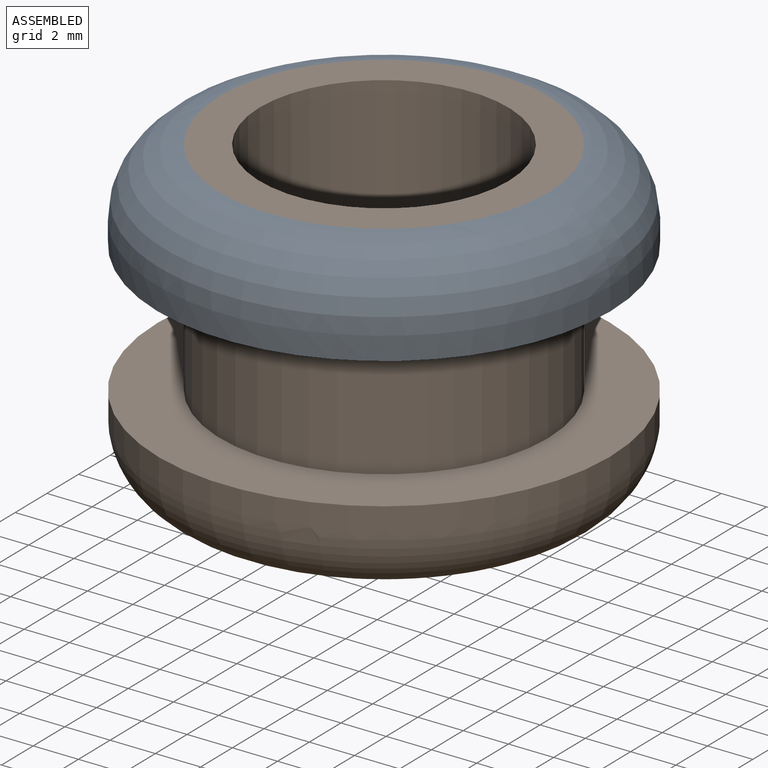
[diagram: assembled view]
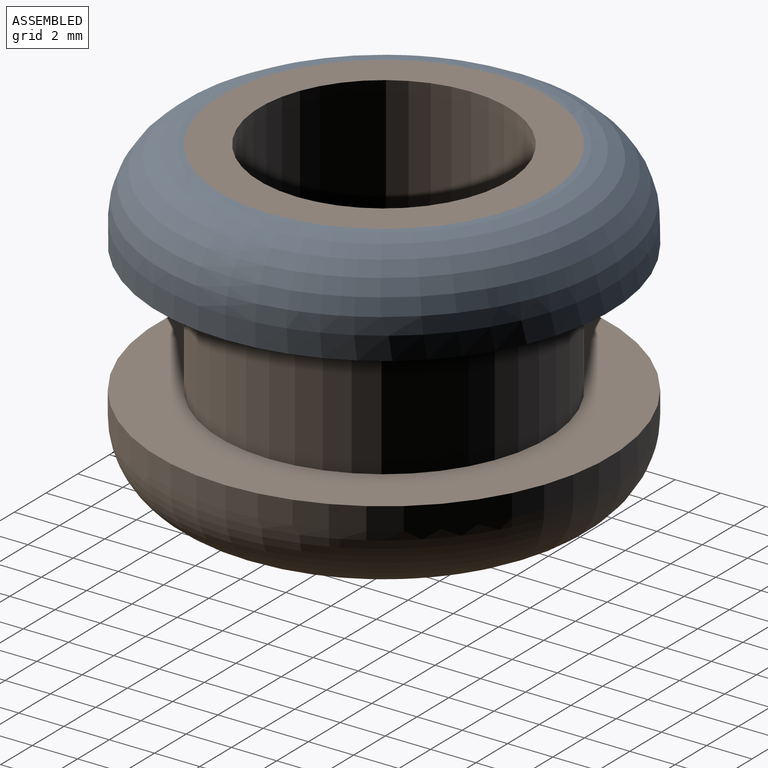
[diagram: assembled view, second angle]
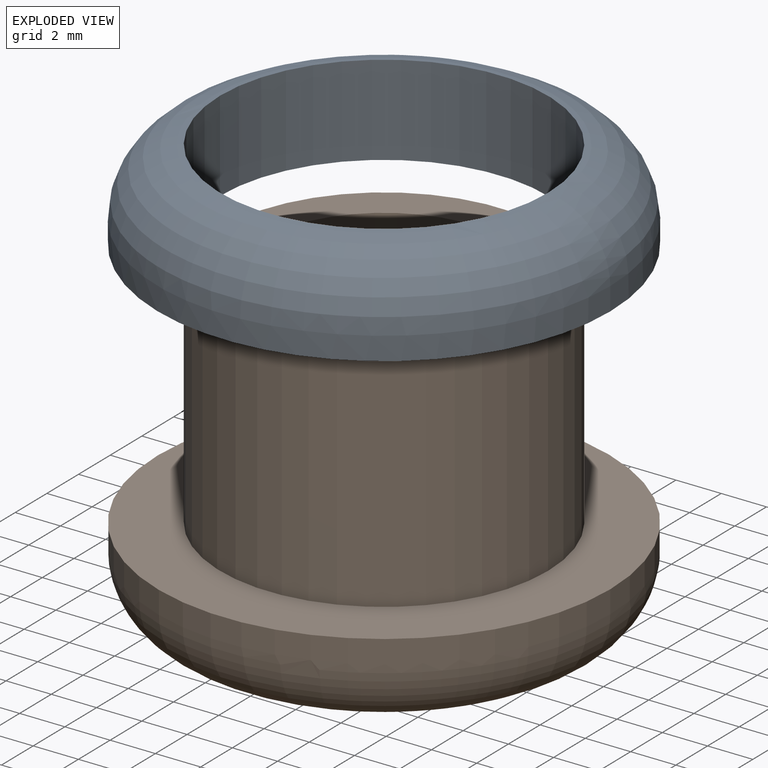
[diagram: exploded view]
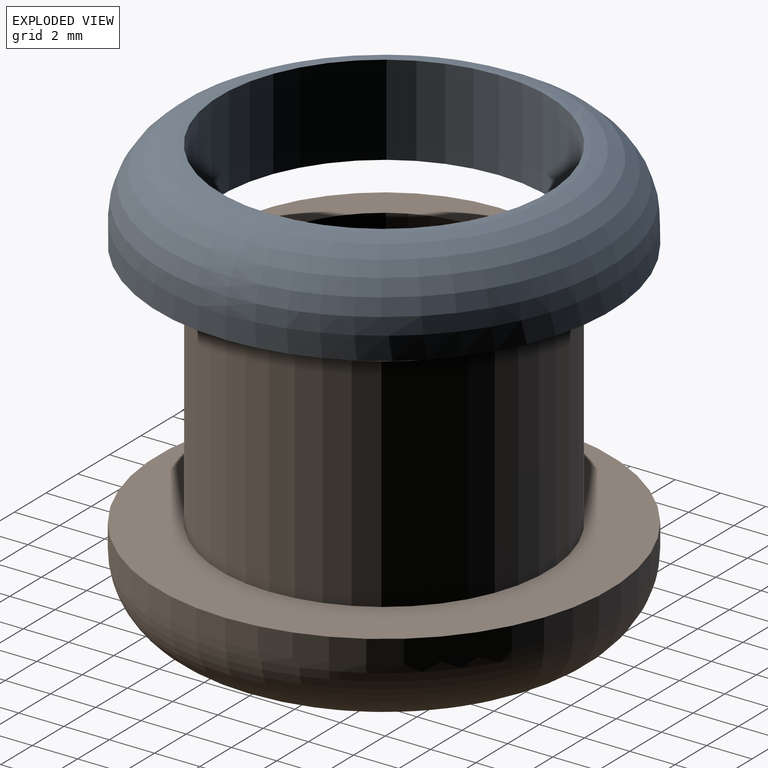
[diagram: exploded view, second angle]
ASSEMBLY  parts=2 mates=2
PART A: 4 faces, bbox 21.6x21.6x4 mm
  f0: cylinder r=7.25mm len=14.5mm, axis (0,0,1), area 182.2mm2, adj f2,f3
  f1: cylinder r=10mm len=20mm, axis (0,0,1), area 63.5mm2, adj f2,f3
  f2: plane 20x20mm, normal (0,0,1), area 149mm2, adj f0,f1
  f3: torus R=7mm, axis (0,0,-1), area 252.6mm2, adj f0,f1
PART B: 7 faces, bbox 21.6x21.6x13.8 mm
  f0: cylinder r=10mm len=20mm, axis (0,0,-1), area 62.8mm2, adj f3,f4
  f1: cylinder r=5.5mm len=13.8mm, axis (0,0,-1), area 476.9mm2, adj f2,f6
  f2: plane 14x14mm, normal (0,0,1), area 58.9mm2, adj f1,f4
  f3: plane 20x20mm, normal (0,0,-1), area 149mm2, adj f0,f5
  f4: torus R=7mm, axis (0,0,1), area 263.8mm2, adj f0,f2
  f5: cylinder r=7.25mm len=14.5mm, axis (0,0,1), area 446.4mm2, adj f3,f6
  f6: plane 14.5x14.5mm, normal (0,0,-1), area 70.1mm2, adj f1,f5
PLACE A rot(axis=(1,0,0),180deg) t=(4.98,-2.97,8.34)mm
PLACE B rot(axis=(1,0,0),180deg) t=(4.98,-2.97,2.54)mm
MATE cylindrical B.f0 <-> A.f0  axis (0,0,-1) through (4.98,-2.97,7.44)mm
MATE planar A.f0 <-> B.f0  axis (0,0,-1) through (4.98,-2.97,12.34)mm
